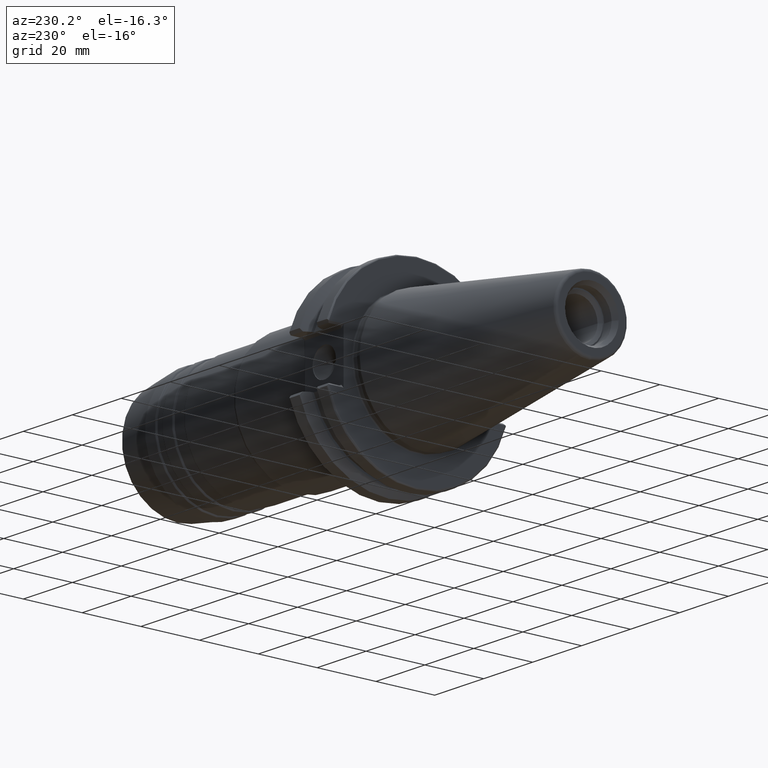
[diagram: clean part render]
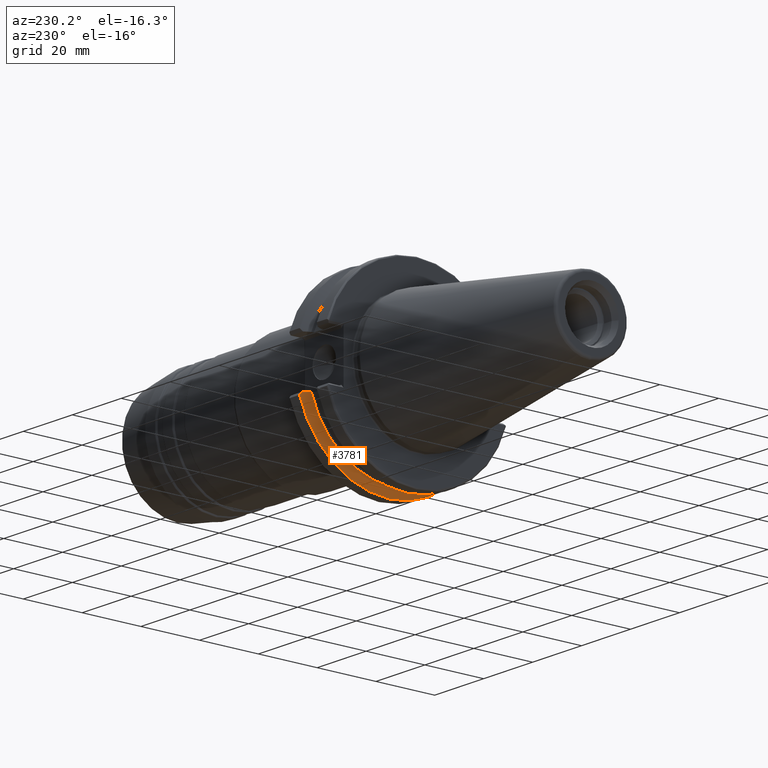
[diagram: same view with one face highlighted and labeled with its STEP entity id]
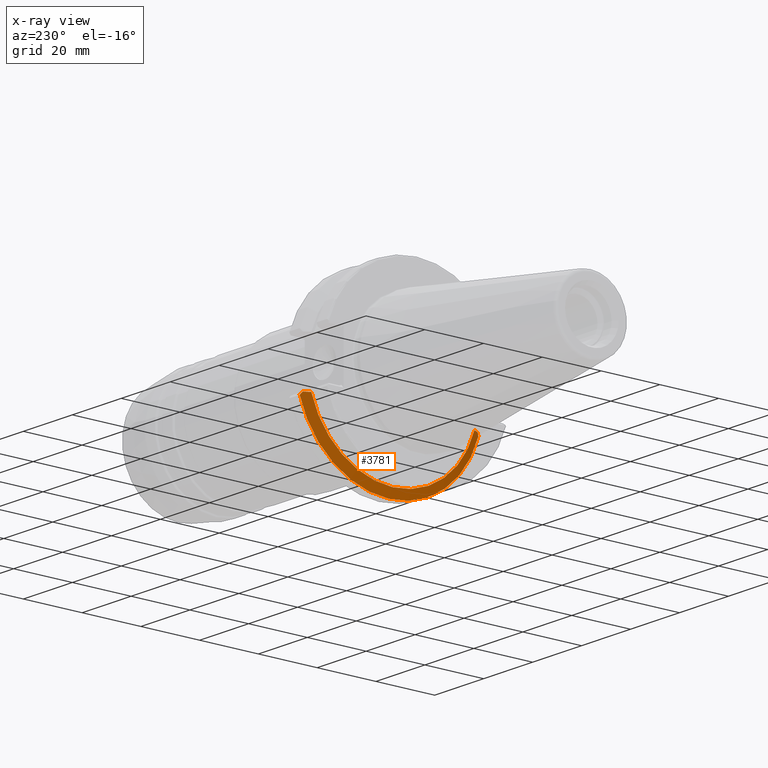
[diagram: x-ray of the same camera — body ghosted, the highlighted face saturated]
A machine part, auxiliary view. The second image highlights one B-rep face of the part: STEP entity #3781.
The next image is the same camera in x-ray: the body ghosted, the highlighted face saturated — about 1% of this face is hidden behind the body in this view.
In plain terms, the highlighted conical surface has half-angle 60 deg.
Its self-contained STEP definition (entity closure, byte-faithful):
#1378=CARTESIAN_POINT('',(1.414456097953E1,2.975013277281E1,-8.19E0));
#1379=CARTESIAN_POINT('',(1.422911662942E1,2.986104445678E1,-8.338900601271E0));
#1380=CARTESIAN_POINT('',(1.439962131011E1,3.008373663306E1,-8.637868192047E0));
#1381=CARTESIAN_POINT('',(1.457288966578E1,3.030817265541E1,-8.939176922368E0));
#1382=CARTESIAN_POINT('',(1.466020913500E1,3.042082819764E1,-9.090418679549E0));
#1384=CARTESIAN_POINT('',(1.30491E1,2.777724275660E1,-8.19E0));
#1385=CARTESIAN_POINT('',(1.316820024555E1,2.799231029587E1,-8.19E0));
#1386=CARTESIAN_POINT('',(1.340814995830E1,2.842520454419E1,-8.19E0));
#1387=CARTESIAN_POINT('',(1.377330302172E1,2.908281901258E1,-8.19E0));
#1388=CARTESIAN_POINT('',(1.402022863780E1,2.952677158003E1,-8.19E0));
#1389=CARTESIAN_POINT('',(1.414456097953E1,2.975013277281E1,-8.19E0));
#1391=CARTESIAN_POINT('',(1.30491E1,0.E0,0.E0));
#1392=DIRECTION('',(-1.E0,0.E0,0.E0));
#1393=DIRECTION('',(0.E0,9.591762530767E-1,-2.828089735736E-1));
#1394=AXIS2_PLACEMENT_3D('',#1391,#1392,#1393);
#1396=CARTESIAN_POINT('',(1.414456097953E1,-2.975013277281E1,-8.19E0));
#1397=CARTESIAN_POINT('',(1.402025770066E1,-2.952682379103E1,-8.19E0));
#1398=CARTESIAN_POINT('',(1.377337075840E1,-2.908294086790E1,-8.19E0));
#1399=CARTESIAN_POINT('',(1.340821710923E1,-2.842532561250E1,-8.19E0));
#1400=CARTESIAN_POINT('',(1.316822898751E1,-2.799236219722E1,-8.19E0));
#1401=CARTESIAN_POINT('',(1.30491E1,-2.777724275660E1,-8.19E0));
#1403=CARTESIAN_POINT('',(1.466020913500E1,-3.042082819764E1,
-9.090418679549E0));
#1404=CARTESIAN_POINT('',(1.457221703130E1,-3.030730485350E1,
-8.938011885272E0));
#1405=CARTESIAN_POINT('',(1.439828492661E1,-3.008199856098E1,
-8.635534804187E0));
#1406=CARTESIAN_POINT('',(1.422845313315E1,-2.986017414842E1,
-8.337732199229E0));
#1407=CARTESIAN_POINT('',(1.414456097953E1,-2.975013277281E1,-8.19E0));
#1409=CARTESIAN_POINT('',(1.466020913500E1,0.E0,0.E0));
#1410=DIRECTION('',(1.E0,0.E0,0.E0));
#1411=DIRECTION('',(0.E0,-9.581363211856E-1,-2.863123993559E-1));
#1412=AXIS2_PLACEMENT_3D('',#1409,#1410,#1411);
#1540=CARTESIAN_POINT('',(1.30491E1,2.777724275660E1,-8.19E0));
#1541=VERTEX_POINT('',#1540);
#1556=CARTESIAN_POINT('',(1.30491E1,-2.777724275660E1,-8.19E0));
#1557=VERTEX_POINT('',#1556);
#1562=VERTEX_POINT('',#1378);
#1563=VERTEX_POINT('',#1382);
#1572=VERTEX_POINT('',#1403);
#1573=VERTEX_POINT('',#1407);
#3767=CARTESIAN_POINT('',(1.385465456750E1,0.E0,0.E0));
#3768=DIRECTION('',(1.E0,0.E0,0.E0));
#3769=DIRECTION('',(0.E0,0.E0,1.E0));
#3770=AXIS2_PLACEMENT_3D('',#3767,#3768,#3769);
#3771=CONICAL_SURFACE('',#3770,3.035473856082E1,6.E1);
#3772=ORIENTED_EDGE('',*,*,#3358,.F.);
#3773=ORIENTED_EDGE('',*,*,#3388,.F.);
#3775=ORIENTED_EDGE('',*,*,#3774,.T.);
#3776=ORIENTED_EDGE('',*,*,#3300,.F.);
#3777=ORIENTED_EDGE('',*,*,#3330,.F.);
#3778=ORIENTED_EDGE('',*,*,#3520,.T.);
#3779=EDGE_LOOP('',(#3772,#3773,#3775,#3776,#3777,#3778));
#3780=FACE_OUTER_BOUND('',#3779,.F.);
#3781=ADVANCED_FACE('',(#3780),#3771,.T.);
#1383=B_SPLINE_CURVE_WITH_KNOTS('',3,(#1378,#1379,#1380,#1381,#1382),
.UNSPECIFIED.,.F.,.F.,(4,1,4),(0.E0,5.E-1,1.E0),.UNSPECIFIED.);
#1390=B_SPLINE_CURVE_WITH_KNOTS('',3,(#1384,#1385,#1386,#1387,#1388,#1389),
.UNSPECIFIED.,.F.,.F.,(4,1,1,4),(0.E0,3.333333333333E-1,6.666666666667E-1,1.E0),
.UNSPECIFIED.);
#1395=CIRCLE('',#1394,2.895947712164E1);
#1402=B_SPLINE_CURVE_WITH_KNOTS('',3,(#1396,#1397,#1398,#1399,#1400,#1401),
.UNSPECIFIED.,.F.,.F.,(4,1,1,4),(0.E0,3.333333333333E-1,6.666666666667E-1,1.E0),
.UNSPECIFIED.);
#1408=B_SPLINE_CURVE_WITH_KNOTS('',3,(#1403,#1404,#1405,#1406,#1407),
.UNSPECIFIED.,.F.,.F.,(4,1,4),(0.E0,5.E-1,1.E0),.UNSPECIFIED.);
#1413=CIRCLE('',#1412,3.175E1);
#3300=EDGE_CURVE('',#1573,#1557,#1402,.T.);
#3330=EDGE_CURVE('',#1572,#1573,#1408,.T.);
#3358=EDGE_CURVE('',#1562,#1563,#1383,.T.);
#3388=EDGE_CURVE('',#1541,#1562,#1390,.T.);
#3520=EDGE_CURVE('',#1572,#1563,#1413,.T.);
#3774=EDGE_CURVE('',#1541,#1557,#1395,.T.);